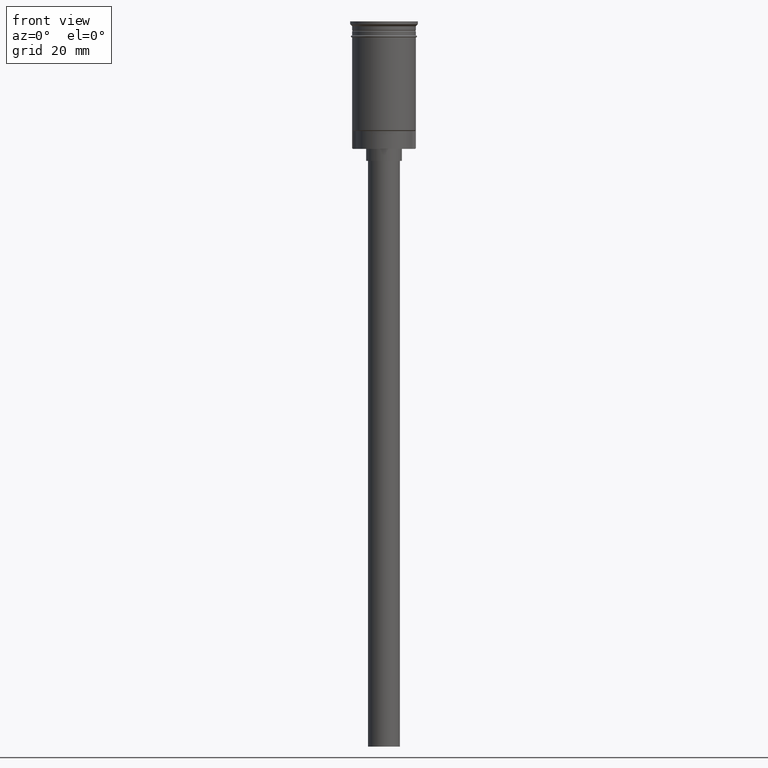
[diagram: clean part render]
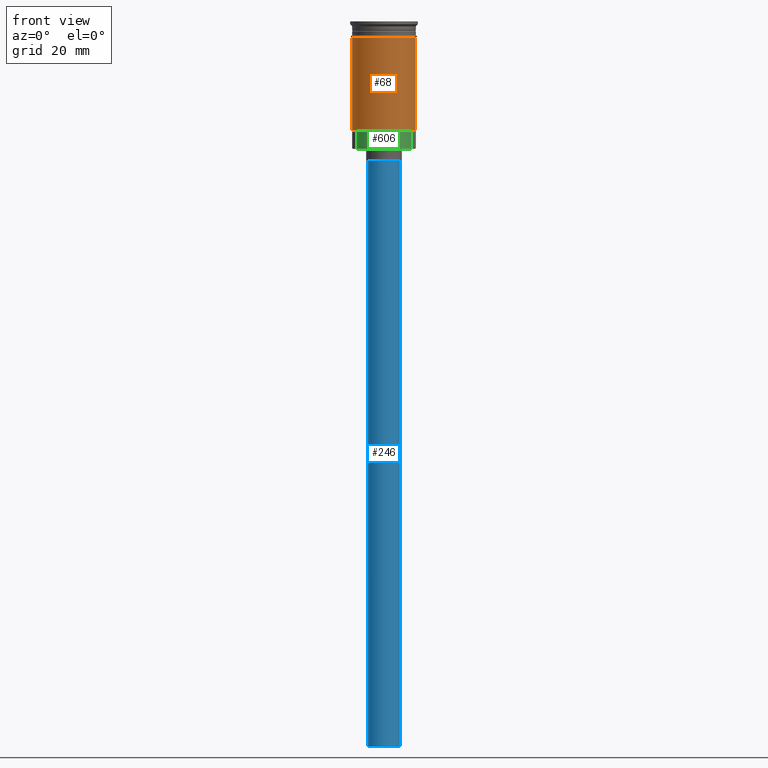
[diagram: same view with three faces highlighted in distinct colors, each labeled with its STEP entity id]
A machine part, front view with three faces highlighted in distinct colors.
Their STEP definitions:

[orange] entity #68 — the highlighted cylindrical surface (edge-blend (fillet) strip) has radius 8 mm, axis along (-0, -0, 1).
#34 = ORIENTED_EDGE ( 'NONE', *, *, #776, .F. ) ;
#68 = ADVANCED_FACE ( 'NONE', ( #941 ), #1298, .T. ) ;
#97 = DIRECTION ( 'NONE',  ( -0.000000000000000000, -0.000000000000000000, 1.000000000000000000 ) ) ;
#104 = CIRCLE ( 'NONE', #648, 8.000000000000000000 ) ;
#137 = DIRECTION ( 'NONE',  ( -0.000000000000000000, -0.000000000000000000, 1.000000000000000000 ) ) ;
#236 = DIRECTION ( 'NONE',  ( 1.000000000000000000, 0.000000000000000000, 0.000000000000000000 ) ) ;
#301 = EDGE_CURVE ( 'NONE', #864, #1328, #104, .T. ) ;
#311 = DIRECTION ( 'NONE',  ( -0.000000000000000000, -0.000000000000000000, 1.000000000000000000 ) ) ;
#321 = DIRECTION ( 'NONE',  ( 1.000000000000000000, 0.000000000000000000, 0.000000000000000000 ) ) ;
#412 = VERTEX_POINT ( 'NONE', #1021 ) ;
#450 = CARTESIAN_POINT ( 'NONE',  ( -7.999999999999992895, 0.000000000000000000, -27.29999999999996518 ) ) ;
#566 = AXIS2_PLACEMENT_3D ( 'NONE', #950, #97, #321 ) ;
#586 = VERTEX_POINT ( 'NONE', #450 ) ;
#612 = CARTESIAN_POINT ( 'NONE',  ( 0.000000000000000000, 0.000000000000000000, -27.29999999999996518 ) ) ;
#635 = ORIENTED_EDGE ( 'NONE', *, *, #1035, .T. ) ;
#648 = AXIS2_PLACEMENT_3D ( 'NONE', #1240, #850, #236 ) ;
#662 = CARTESIAN_POINT ( 'NONE',  ( 7.999999999999996447, 0.000000000000000000, 0.000000000000000000 ) ) ;
#712 = ORIENTED_EDGE ( 'NONE', *, *, #1494, .T. ) ;
#731 = AXIS2_PLACEMENT_3D ( 'NONE', #612, #137, #1374 ) ;
#776 = EDGE_CURVE ( 'NONE', #586, #864, #1180, .T. ) ;
#789 = CARTESIAN_POINT ( 'NONE',  ( -7.999999999999996447, 9.797174393178821713E-16, 0.000000000000000000 ) ) ;
#812 = CARTESIAN_POINT ( 'NONE',  ( -8.000000000000000000, 9.797174393178825657E-16, -3.999999999999997335 ) ) ;
#850 = DIRECTION ( 'NONE',  ( -0.000000000000000000, -0.000000000000000000, 1.000000000000000000 ) ) ;
#864 = VERTEX_POINT ( 'NONE', #812 ) ;
#901 = LINE ( 'NONE', #662, #1251 ) ;
#912 = DIRECTION ( 'NONE',  ( -0.000000000000000000, -0.000000000000000000, 1.000000000000000000 ) ) ;
#941 = FACE_OUTER_BOUND ( 'NONE', #1491, .T. ) ;
#950 = CARTESIAN_POINT ( 'NONE',  ( 0.000000000000000000, 0.000000000000000000, 0.000000000000000000 ) ) ;
#995 = ORIENTED_EDGE ( 'NONE', *, *, #301, .F. ) ;
#1021 = CARTESIAN_POINT ( 'NONE',  ( 7.999999999999996447, 9.797174393178821713E-16, -27.29999999999996518 ) ) ;
#1035 = EDGE_CURVE ( 'NONE', #586, #412, #1385, .T. ) ;
#1180 = LINE ( 'NONE', #789, #1247 ) ;
#1240 = CARTESIAN_POINT ( 'NONE',  ( 0.000000000000000000, 0.000000000000000000, -3.999999999999997335 ) ) ;
#1247 = VECTOR ( 'NONE', #912, 1000.000000000000000 ) ;
#1251 = VECTOR ( 'NONE', #311, 1000.000000000000000 ) ;
#1298 = CYLINDRICAL_SURFACE ( 'NONE', #566, 7.999999999999996447 ) ;
#1328 = VERTEX_POINT ( 'NONE', #1492 ) ;
#1374 = DIRECTION ( 'NONE',  ( -1.000000000000000000, 0.000000000000000000, 0.000000000000000000 ) ) ;
#1385 = CIRCLE ( 'NONE', #731, 7.999999999999996447 ) ;
#1491 = EDGE_LOOP ( 'NONE', ( #34, #635, #712, #995 ) ) ;
#1492 = CARTESIAN_POINT ( 'NONE',  ( 8.000000000000000000, 0.000000000000000000, -3.999999999999997335 ) ) ;
#1494 = EDGE_CURVE ( 'NONE', #412, #1328, #901, .T. ) ;

[blue] entity #246 — the highlighted cylindrical surface (edge-blend (fillet) strip) has radius 4 mm, axis along (-0, -0, 1).
#14 = DIRECTION ( 'NONE',  ( 1.000000000000000000, 0.000000000000000000, 0.000000000000000000 ) ) ;
#57 = VECTOR ( 'NONE', #1149, 1000.000000000000000 ) ;
#106 = CIRCLE ( 'NONE', #261, 4.000000000000000000 ) ;
#195 = VERTEX_POINT ( 'NONE', #1128 ) ;
#206 = AXIS2_PLACEMENT_3D ( 'NONE', #991, #733, #14 ) ;
#209 = AXIS2_PLACEMENT_3D ( 'NONE', #1038, #795, #921 ) ;
#226 = CARTESIAN_POINT ( 'NONE',  ( 4.000000000000000000, 0.000000000000000000, -182.0000000000000000 ) ) ;
#242 = ORIENTED_EDGE ( 'NONE', *, *, #1020, .T. ) ;
#246 = ADVANCED_FACE ( 'NONE', ( #388 ), #1477, .T. ) ;
#261 = AXIS2_PLACEMENT_3D ( 'NONE', #1443, #417, #927 ) ;
#264 = EDGE_LOOP ( 'NONE', ( #545, #642, #242, #531 ) ) ;
#287 = CIRCLE ( 'NONE', #209, 4.000000000000000000 ) ;
#349 = LINE ( 'NONE', #226, #1412 ) ;
#373 = EDGE_CURVE ( 'NONE', #555, #195, #652, .T. ) ;
#388 = FACE_OUTER_BOUND ( 'NONE', #264, .T. ) ;
#417 = DIRECTION ( 'NONE',  ( 0.000000000000000000, 0.000000000000000000, -1.000000000000000000 ) ) ;
#531 = ORIENTED_EDGE ( 'NONE', *, *, #825, .T. ) ;
#545 = ORIENTED_EDGE ( 'NONE', *, *, #373, .F. ) ;
#555 = VERTEX_POINT ( 'NONE', #1570 ) ;
#642 = ORIENTED_EDGE ( 'NONE', *, *, #796, .F. ) ;
#652 = LINE ( 'NONE', #1033, #57 ) ;
#661 = VERTEX_POINT ( 'NONE', #1403 ) ;
#719 = DIRECTION ( 'NONE',  ( -0.000000000000000000, -0.000000000000000000, 1.000000000000000000 ) ) ;
#733 = DIRECTION ( 'NONE',  ( -0.000000000000000000, -0.000000000000000000, 1.000000000000000000 ) ) ;
#735 = VERTEX_POINT ( 'NONE', #1017 ) ;
#795 = DIRECTION ( 'NONE',  ( 0.000000000000000000, 0.000000000000000000, -1.000000000000000000 ) ) ;
#796 = EDGE_CURVE ( 'NONE', #661, #555, #287, .T. ) ;
#825 = EDGE_CURVE ( 'NONE', #735, #195, #106, .T. ) ;
#921 = DIRECTION ( 'NONE',  ( -1.000000000000000000, 0.000000000000000000, 0.000000000000000000 ) ) ;
#927 = DIRECTION ( 'NONE',  ( -1.000000000000000000, 0.000000000000000000, 0.000000000000000000 ) ) ;
#991 = CARTESIAN_POINT ( 'NONE',  ( 0.000000000000000000, 0.000000000000000000, -182.0000000000000000 ) ) ;
#1017 = CARTESIAN_POINT ( 'NONE',  ( 4.000000000000000000, 0.000000000000000000, -35.00000000000000000 ) ) ;
#1020 = EDGE_CURVE ( 'NONE', #661, #735, #349, .T. ) ;
#1033 = CARTESIAN_POINT ( 'NONE',  ( -4.000000000000000000, 4.898587196589412829E-16, -182.0000000000000000 ) ) ;
#1038 = CARTESIAN_POINT ( 'NONE',  ( 0.000000000000000000, 0.000000000000000000, -182.0000000000000000 ) ) ;
#1128 = CARTESIAN_POINT ( 'NONE',  ( -4.000000000000000000, 4.898587196589412829E-16, -35.00000000000000000 ) ) ;
#1149 = DIRECTION ( 'NONE',  ( -0.000000000000000000, -0.000000000000000000, 1.000000000000000000 ) ) ;
#1403 = CARTESIAN_POINT ( 'NONE',  ( 4.000000000000000000, 0.000000000000000000, -182.0000000000000000 ) ) ;
#1412 = VECTOR ( 'NONE', #719, 1000.000000000000000 ) ;
#1443 = CARTESIAN_POINT ( 'NONE',  ( 0.000000000000000000, 0.000000000000000000, -35.00000000000000000 ) ) ;
#1477 = CYLINDRICAL_SURFACE ( 'NONE', #206, 4.000000000000000000 ) ;
#1570 = CARTESIAN_POINT ( 'NONE',  ( -4.000000000000000000, 4.898587196589412829E-16, -182.0000000000000000 ) ) ;

[green] entity #606 — the highlighted cylindrical surface (edge-blend (fillet) strip) has radius 7.05 mm, axis along (-0, -0, 1).
#15 = DIRECTION ( 'NONE',  ( 1.000000000000000000, 0.000000000000000000, 0.000000000000000000 ) ) ;
#19 = CARTESIAN_POINT ( 'NONE',  ( -6.839661847014926188, -1.709247149621246686, -32.00000000000000000 ) ) ;
#146 = CARTESIAN_POINT ( 'NONE',  ( 6.839661847014925300, -1.709247149621250017, -32.00000000000000000 ) ) ;
#182 = CIRCLE ( 'NONE', #1435, 7.049999999999998934 ) ;
#198 = VERTEX_POINT ( 'NONE', #739 ) ;
#280 = DIRECTION ( 'NONE',  ( -0.000000000000000000, -0.000000000000000000, 1.000000000000000000 ) ) ;
#313 = ORIENTED_EDGE ( 'NONE', *, *, #928, .F. ) ;
#409 = ORIENTED_EDGE ( 'NONE', *, *, #1523, .T. ) ;
#410 = CYLINDRICAL_SURFACE ( 'NONE', #1589, 7.049999999999998934 ) ;
#494 = CIRCLE ( 'NONE', #701, 7.049999999999998934 ) ;
#504 = CARTESIAN_POINT ( 'NONE',  ( 0.000000000000000000, 0.000000000000000000, -32.00000000000000000 ) ) ;
#511 = FACE_OUTER_BOUND ( 'NONE', #957, .T. ) ;
#521 = VECTOR ( 'NONE', #1464, 1000.000000000000000 ) ;
#606 = ADVANCED_FACE ( 'NONE', ( #511 ), #410, .T. ) ;
#679 = DIRECTION ( 'NONE',  ( -1.000000000000000000, 0.000000000000000000, 0.000000000000000000 ) ) ;
#701 = AXIS2_PLACEMENT_3D ( 'NONE', #1201, #973, #1100 ) ;
#714 = CARTESIAN_POINT ( 'NONE',  ( -6.839661847014926188, -1.709247149621246686, -32.00000000000000000 ) ) ;
#725 = VERTEX_POINT ( 'NONE', #146 ) ;
#739 = CARTESIAN_POINT ( 'NONE',  ( -6.839661847014926188, -1.709247149621246686, -27.50000000000000355 ) ) ;
#779 = DIRECTION ( 'NONE',  ( -0.000000000000000000, -0.000000000000000000, 1.000000000000000000 ) ) ;
#801 = DIRECTION ( 'NONE',  ( 0.000000000000000000, 0.000000000000000000, -1.000000000000000000 ) ) ;
#824 = LINE ( 'NONE', #714, #521 ) ;
#856 = EDGE_CURVE ( 'NONE', #1294, #198, #182, .T. ) ;
#928 = EDGE_CURVE ( 'NONE', #725, #1462, #494, .T. ) ;
#931 = LINE ( 'NONE', #1283, #1386 ) ;
#957 = EDGE_LOOP ( 'NONE', ( #1015, #1381, #313, #409 ) ) ;
#973 = DIRECTION ( 'NONE',  ( 0.000000000000000000, 0.000000000000000000, -1.000000000000000000 ) ) ;
#994 = CARTESIAN_POINT ( 'NONE',  ( 6.839661847014925300, -1.709247149621250017, -27.50000000000000355 ) ) ;
#1009 = EDGE_CURVE ( 'NONE', #1462, #198, #824, .T. ) ;
#1015 = ORIENTED_EDGE ( 'NONE', *, *, #856, .T. ) ;
#1100 = DIRECTION ( 'NONE',  ( -1.000000000000000000, 0.000000000000000000, 0.000000000000000000 ) ) ;
#1201 = CARTESIAN_POINT ( 'NONE',  ( 0.000000000000000000, 0.000000000000000000, -32.00000000000000000 ) ) ;
#1283 = CARTESIAN_POINT ( 'NONE',  ( 6.839661847014925300, -1.709247149621250017, -32.00000000000000000 ) ) ;
#1294 = VERTEX_POINT ( 'NONE', #994 ) ;
#1381 = ORIENTED_EDGE ( 'NONE', *, *, #1009, .F. ) ;
#1386 = VECTOR ( 'NONE', #280, 1000.000000000000000 ) ;
#1427 = CARTESIAN_POINT ( 'NONE',  ( 0.000000000000000000, 0.000000000000000000, -27.50000000000000355 ) ) ;
#1435 = AXIS2_PLACEMENT_3D ( 'NONE', #1427, #801, #679 ) ;
#1462 = VERTEX_POINT ( 'NONE', #19 ) ;
#1464 = DIRECTION ( 'NONE',  ( -0.000000000000000000, -0.000000000000000000, 1.000000000000000000 ) ) ;
#1523 = EDGE_CURVE ( 'NONE', #725, #1294, #931, .T. ) ;
#1589 = AXIS2_PLACEMENT_3D ( 'NONE', #504, #779, #15 ) ;